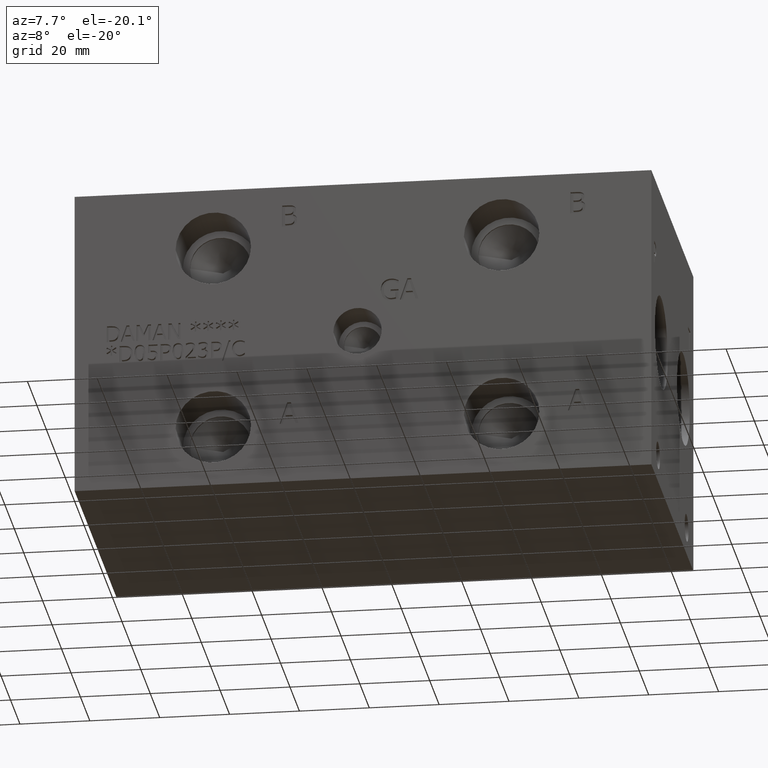
[diagram: clean part render]
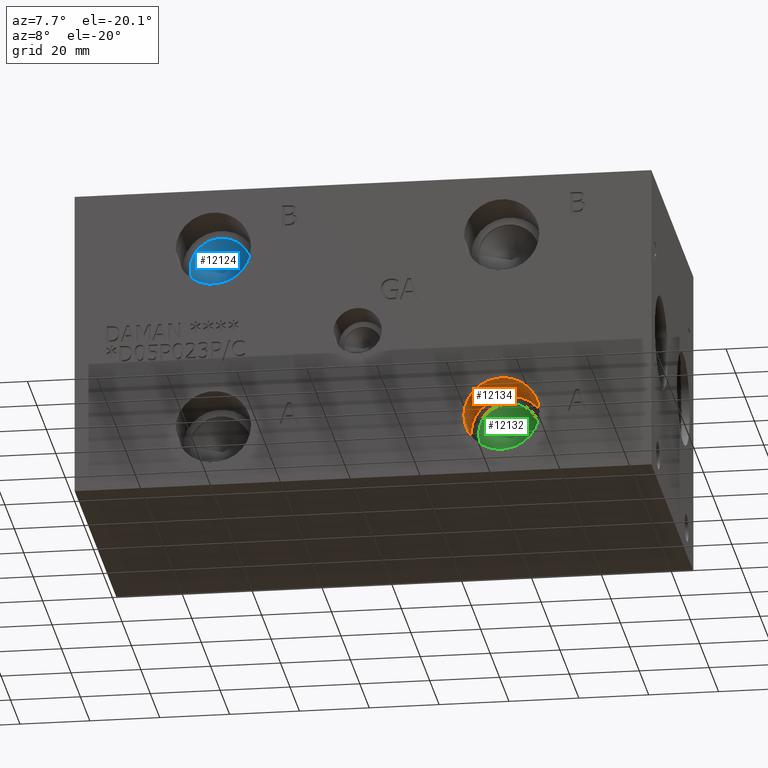
[diagram: same view with three faces highlighted in distinct colors, each labeled with its STEP entity id]
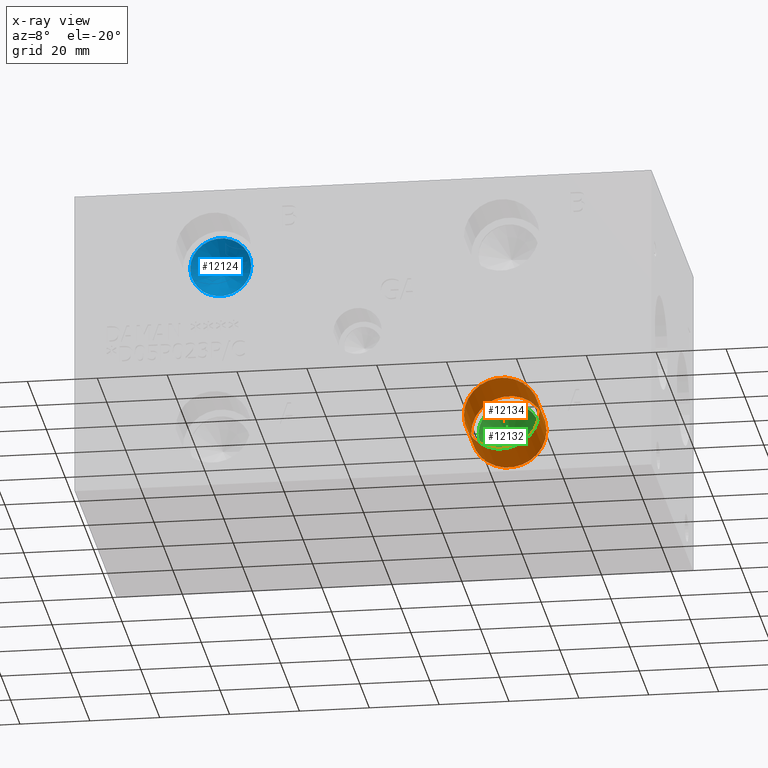
[diagram: x-ray of the same camera — body ghosted, the three highlighted faces saturated]
A machine part, auxiliary view with three faces highlighted in distinct colors.
The next image is the same camera in x-ray (body ghosted, the three faces saturated) — at least one of them is partly hidden behind the body in this view.
Their STEP definitions:

[orange] entity #12134 — the highlighted cylindrical surface (bore or boss wall) has radius 10.795 mm, axis along (0, -1, 0).
#78=CYLINDRICAL_SURFACE('',#12715,10.795);
#104=CIRCLE('',#12285,10.795);
#105=CIRCLE('',#12286,10.795);
#218=CIRCLE('',#12712,10.795);
#219=CIRCLE('',#12713,10.795);
#1495=FACE_OUTER_BOUND('',#2193,.T.);
#2193=EDGE_LOOP('',(#10417,#10418,#10419,#10420,#10421,#10422));
#3357=LINE('',#20715,#4484);
#4484=VECTOR('',#14968,10.795);
#5020=VERTEX_POINT('',#18068);
#5021=VERTEX_POINT('',#18069);
#5578=VERTEX_POINT('',#20708);
#5579=VERTEX_POINT('',#20709);
#6353=EDGE_CURVE('',#5020,#5021,#104,.T.);
#6354=EDGE_CURVE('',#5021,#5020,#105,.T.);
#7228=EDGE_CURVE('',#5578,#5579,#218,.T.);
#7229=EDGE_CURVE('',#5579,#5578,#219,.T.);
#7231=EDGE_CURVE('',#5021,#5579,#3357,.T.);
#10417=ORIENTED_EDGE('',*,*,#6353,.F.);
#10418=ORIENTED_EDGE('',*,*,#6354,.F.);
#10419=ORIENTED_EDGE('',*,*,#7231,.T.);
#10420=ORIENTED_EDGE('',*,*,#7228,.F.);
#10421=ORIENTED_EDGE('',*,*,#7229,.F.);
#10422=ORIENTED_EDGE('',*,*,#7231,.F.);
#12134=ADVANCED_FACE('',(#1495),#78,.F.);
#12285=AXIS2_PLACEMENT_3D('',#18070,#13467,#13468);
#12286=AXIS2_PLACEMENT_3D('',#18071,#13469,#13470);
#12712=AXIS2_PLACEMENT_3D('',#20710,#14960,#14961);
#12713=AXIS2_PLACEMENT_3D('',#20711,#14962,#14963);
#12715=AXIS2_PLACEMENT_3D('',#20714,#14966,#14967);
#13467=DIRECTION('center_axis',(0.,1.,0.));
#13468=DIRECTION('ref_axis',(1.,0.,0.));
#13469=DIRECTION('center_axis',(0.,1.,0.));
#13470=DIRECTION('ref_axis',(1.,0.,0.));
#14960=DIRECTION('center_axis',(0.,-1.,0.));
#14961=DIRECTION('ref_axis',(1.,0.,0.));
#14962=DIRECTION('center_axis',(0.,-1.,0.));
#14963=DIRECTION('ref_axis',(1.,0.,0.));
#14966=DIRECTION('center_axis',(0.,-1.,0.));
#14967=DIRECTION('ref_axis',(1.,0.,0.));
#14968=DIRECTION('',(0.,1.,0.));
#18068=CARTESIAN_POINT('',(133.0198,0.,17.4752));
#18069=CARTESIAN_POINT('',(111.4298,0.,17.4752));
#18070=CARTESIAN_POINT('Origin',(122.2248,0.,17.4752));
#18071=CARTESIAN_POINT('Origin',(122.2248,0.,17.4752));
#20708=CARTESIAN_POINT('',(133.0198,15.367,17.4752));
#20709=CARTESIAN_POINT('',(111.4298,15.367,17.4752));
#20710=CARTESIAN_POINT('Origin',(122.2248,15.367,17.4752));
#20711=CARTESIAN_POINT('Origin',(122.2248,15.367,17.4752));
#20714=CARTESIAN_POINT('Origin',(122.2248,7.6835,17.4752));
#20715=CARTESIAN_POINT('',(111.4298,7.6835,17.4752));

[blue] entity #12124 — the highlighted conical surface has half-angle 60 deg.
#29=CONICAL_SURFACE('',#12690,4.3688,1.0471975511966);
#206=CIRCLE('',#12691,8.7376);
#207=CIRCLE('',#12692,8.7376);
#1485=FACE_OUTER_BOUND('',#2180,.T.);
#2180=EDGE_LOOP('',(#10374,#10375,#10376,#10377));
#3350=LINE('',#20669,#4477);
#4477=VECTOR('',#14913,4.3688);
#5563=VERTEX_POINT('',#20665);
#5564=VERTEX_POINT('',#20666);
#5565=VERTEX_POINT('',#20668);
#7209=EDGE_CURVE('',#5563,#5564,#206,.T.);
#7210=EDGE_CURVE('',#5564,#5565,#3350,.T.);
#7211=EDGE_CURVE('',#5564,#5563,#207,.T.);
#10374=ORIENTED_EDGE('',*,*,#7209,.T.);
#10375=ORIENTED_EDGE('',*,*,#7210,.T.);
#10376=ORIENTED_EDGE('',*,*,#7210,.F.);
#10377=ORIENTED_EDGE('',*,*,#7211,.T.);
#12124=ADVANCED_FACE('',(#1485),#29,.F.);
#12690=AXIS2_PLACEMENT_3D('',#20664,#14909,#14910);
#12691=AXIS2_PLACEMENT_3D('',#20667,#14911,#14912);
#12692=AXIS2_PLACEMENT_3D('',#20670,#14914,#14915);
#14909=DIRECTION('center_axis',(0.,-1.,0.));
#14910=DIRECTION('ref_axis',(1.,0.,0.));
#14911=DIRECTION('center_axis',(0.,-1.,0.));
#14912=DIRECTION('ref_axis',(1.,0.,0.));
#14913=DIRECTION('',(0.866025403784439,0.5,1.06057523872491E-16));
#14914=DIRECTION('center_axis',(0.,-1.,0.));
#14915=DIRECTION('ref_axis',(1.,0.,0.));
#20664=CARTESIAN_POINT('Origin',(39.6748,18.3937978560356,71.4248));
#20665=CARTESIAN_POINT('',(48.4124,15.87147,71.4248));
#20666=CARTESIAN_POINT('',(30.9372,15.87147,71.4248));
#20667=CARTESIAN_POINT('Origin',(39.6748,15.87147,71.4248));
#20668=CARTESIAN_POINT('',(39.6748,20.9161257120713,71.4248));
#20669=CARTESIAN_POINT('',(35.306,18.3937978560356,71.4248));
#20670=CARTESIAN_POINT('Origin',(39.6748,15.87147,71.4248));

[green] entity #12132 — the highlighted conical surface has half-angle 60 deg.
#31=CONICAL_SURFACE('',#12708,4.3688,1.0471975511966);
#216=CIRCLE('',#12709,8.7376);
#217=CIRCLE('',#12710,8.7376);
#1493=FACE_OUTER_BOUND('',#2190,.T.);
#2190=EDGE_LOOP('',(#10410,#10411,#10412,#10413));
#3356=LINE('',#20705,#4483);
#4483=VECTOR('',#14955,4.3688);
#5575=VERTEX_POINT('',#20701);
#5576=VERTEX_POINT('',#20702);
#5577=VERTEX_POINT('',#20704);
#7225=EDGE_CURVE('',#5575,#5576,#216,.T.);
#7226=EDGE_CURVE('',#5576,#5577,#3356,.T.);
#7227=EDGE_CURVE('',#5576,#5575,#217,.T.);
#10410=ORIENTED_EDGE('',*,*,#7225,.T.);
#10411=ORIENTED_EDGE('',*,*,#7226,.T.);
#10412=ORIENTED_EDGE('',*,*,#7226,.F.);
#10413=ORIENTED_EDGE('',*,*,#7227,.T.);
#12132=ADVANCED_FACE('',(#1493),#31,.F.);
#12708=AXIS2_PLACEMENT_3D('',#20700,#14951,#14952);
#12709=AXIS2_PLACEMENT_3D('',#20703,#14953,#14954);
#12710=AXIS2_PLACEMENT_3D('',#20706,#14956,#14957);
#14951=DIRECTION('center_axis',(0.,-1.,0.));
#14952=DIRECTION('ref_axis',(1.,0.,0.));
#14953=DIRECTION('center_axis',(0.,-1.,0.));
#14954=DIRECTION('ref_axis',(1.,0.,0.));
#14955=DIRECTION('',(0.866025403784439,0.5,1.06057523872491E-16));
#14956=DIRECTION('center_axis',(0.,-1.,0.));
#14957=DIRECTION('ref_axis',(1.,0.,0.));
#20700=CARTESIAN_POINT('Origin',(122.2248,18.3937978560356,17.4752));
#20701=CARTESIAN_POINT('',(130.9624,15.87147,17.4752));
#20702=CARTESIAN_POINT('',(113.4872,15.87147,17.4752));
#20703=CARTESIAN_POINT('Origin',(122.2248,15.87147,17.4752));
#20704=CARTESIAN_POINT('',(122.2248,20.9161257120713,17.4752));
#20705=CARTESIAN_POINT('',(117.856,18.3937978560356,17.4752));
#20706=CARTESIAN_POINT('Origin',(122.2248,15.87147,17.4752));